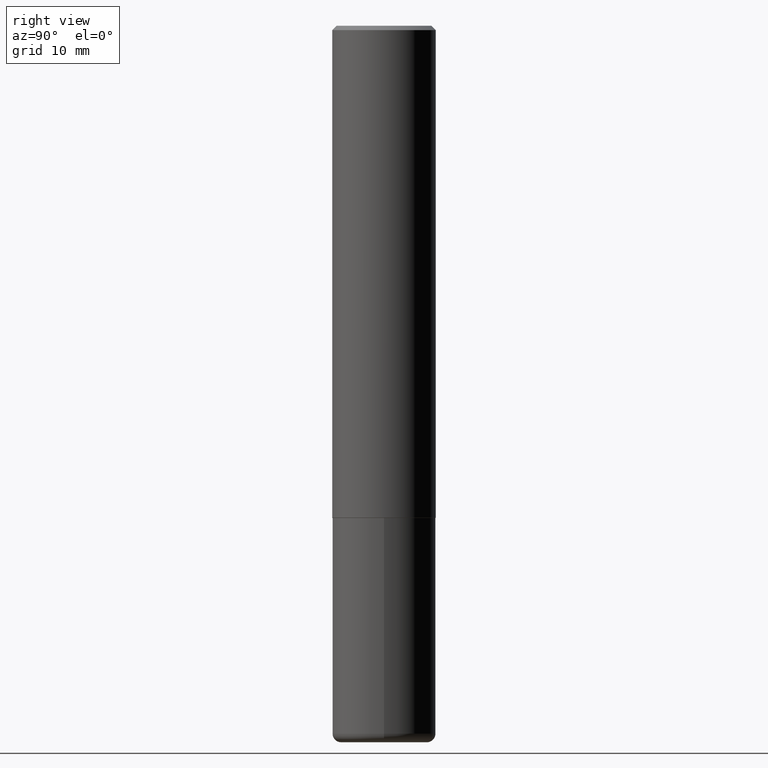
[diagram: clean part render]
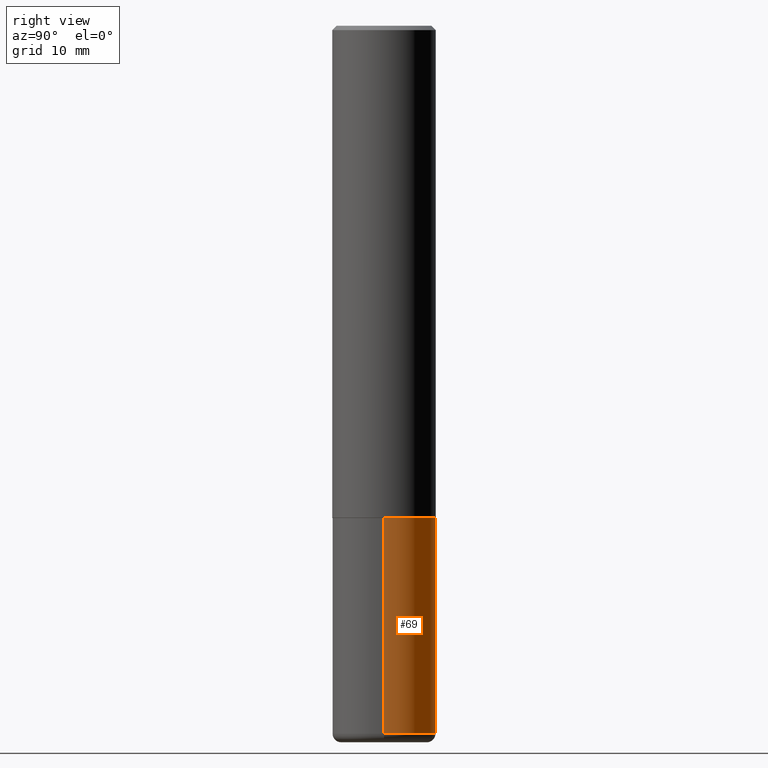
[diagram: same view with one face highlighted and labeled with its STEP entity id]
A machine part, right view. The second image highlights one B-rep face of the part: STEP entity #69.
In plain terms, the highlighted cylindrical surface (partial cylindrical patch) has radius 5.9995 mm, axis along (-0, 0, 1).
Its self-contained STEP definition (entity closure, byte-faithful):
#17 = VECTOR ( 'NONE', #130, 39.37007874015748143 ) ;
#26 = DIRECTION ( 'NONE',  ( -2.445468806185136597E-29, 3.491481338843145583E-15, 1.000000000000000000 ) ) ;
#33 = DIRECTION ( 'NONE',  ( -2.445468806185136597E-29, 3.491481338843145583E-15, 1.000000000000000000 ) ) ;
#51 = DIRECTION ( 'NONE',  ( 1.000000000000000000, -6.982962677686266711E-15, 4.876176775795936353E-29 ) ) ;
#62 = CARTESIAN_POINT ( 'NONE',  ( 0.2361999999999999933, -1.649375784469496131E-15, 1.151752954443000088E-29 ) ) ;
#69 = ADVANCED_FACE ( 'NONE', ( #121 ), #380, .T. ) ;
#71 = ORIENTED_EDGE ( 'NONE', *, *, #151, .F. ) ;
#74 = CIRCLE ( 'NONE', #398, 0.2362000000000000210 ) ;
#110 = VERTEX_POINT ( 'NONE', #212 ) ;
#121 = FACE_OUTER_BOUND ( 'NONE', #171, .T. ) ;
#123 = CARTESIAN_POINT ( 'NONE',  ( -0.2362000000000001321, -9.593247264321970832E-15, -3.228299999999999947 ) ) ;
#126 = CARTESIAN_POINT ( 'NONE',  ( -0.2362000000000000766, -7.875089297477259967E-15, -2.244100000000000428 ) ) ;
#130 = DIRECTION ( 'NONE',  ( -2.445468806185136877E-29, 3.491481338843145188E-15, 1.000000000000000000 ) ) ;
#136 = VERTEX_POINT ( 'NONE', #320 ) ;
#151 = EDGE_CURVE ( 'NONE', #110, #241, #74, .T. ) ;
#161 = DIRECTION ( 'NONE',  ( 1.000000000000000000, -6.982962677686268288E-15, 0.000000000000000000 ) ) ;
#171 = EDGE_LOOP ( 'NONE', ( #269, #206, #71, #216 ) ) ;
#188 = EDGE_CURVE ( 'NONE', #257, #241, #417, .T. ) ;
#191 = AXIS2_PLACEMENT_3D ( 'NONE', #214, #26, #51 ) ;
#196 = DIRECTION ( 'NONE',  ( 1.000000000000000000, -6.982962677686265922E-15, 0.000000000000000000 ) ) ;
#201 = EDGE_CURVE ( 'NONE', #136, #257, #249, .T. ) ;
#206 = ORIENTED_EDGE ( 'NONE', *, *, #188, .T. ) ;
#212 = CARTESIAN_POINT ( 'NONE',  ( 0.2362000000000000210, -9.484609056967400443E-15, -2.244100000000000428 ) ) ;
#214 = CARTESIAN_POINT ( 'NONE',  ( 0.000000000000000000, 0.000000000000000000, 0.000000000000000000 ) ) ;
#216 = ORIENTED_EDGE ( 'NONE', *, *, #285, .F. ) ;
#221 = LINE ( 'NONE', #62, #386 ) ;
#241 = VERTEX_POINT ( 'NONE', #126 ) ;
#249 = CIRCLE ( 'NONE', #415, 0.2361999999999999655 ) ;
#250 = CARTESIAN_POINT ( 'NONE',  ( 5.487876547960065873E-29, -7.835233272497903917E-15, -2.244100000000000428 ) ) ;
#255 = CARTESIAN_POINT ( 'NONE',  ( -0.2361999999999999933, 1.678301941865356591E-15, -1.161852468318208757E-29 ) ) ;
#257 = VERTEX_POINT ( 'NONE', #123 ) ;
#269 = ORIENTED_EDGE ( 'NONE', *, *, #201, .T. ) ;
#285 = EDGE_CURVE ( 'NONE', #136, #110, #221, .T. ) ;
#320 = CARTESIAN_POINT ( 'NONE',  ( 0.2362000000000001321, -1.292092499065682533E-14, -3.228299999999999947 ) ) ;
#353 = DIRECTION ( 'NONE',  ( -2.445468806185136597E-29, 3.491481338843145583E-15, 1.000000000000000000 ) ) ;
#380 = CYLINDRICAL_SURFACE ( 'NONE', #191, 0.2361999999999999933 ) ;
#386 = VECTOR ( 'NONE', #416, 39.37007874015748143 ) ;
#387 = CARTESIAN_POINT ( 'NONE',  ( 7.894706947007477118E-29, -1.127154920618732880E-14, -3.228299999999999947 ) ) ;
#398 = AXIS2_PLACEMENT_3D ( 'NONE', #250, #33, #161 ) ;
#415 = AXIS2_PLACEMENT_3D ( 'NONE', #387, #353, #196 ) ;
#416 = DIRECTION ( 'NONE',  ( -2.445468806185136877E-29, 3.491481338843145188E-15, 1.000000000000000000 ) ) ;
#417 = LINE ( 'NONE', #255, #17 ) ;